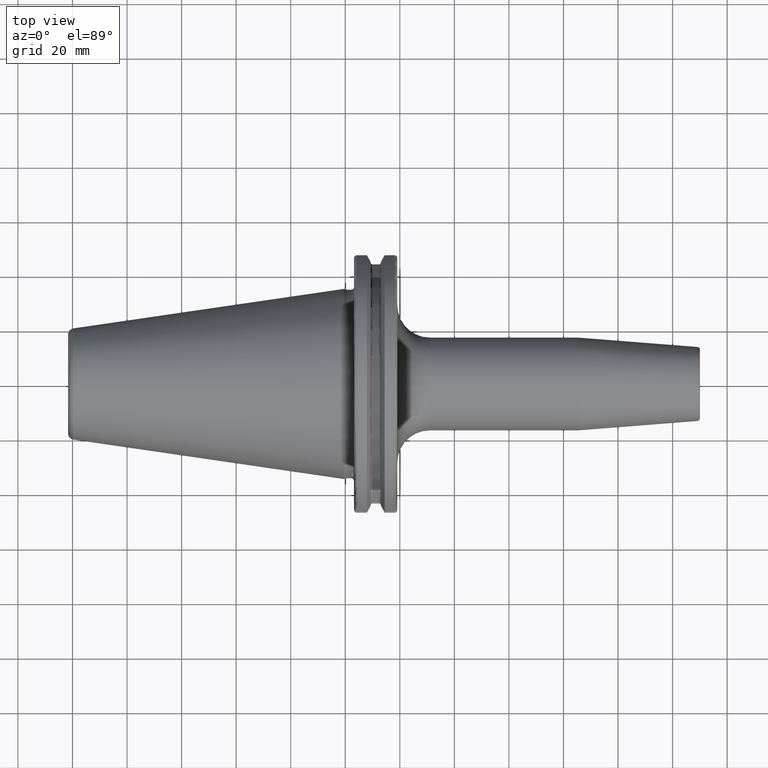
[diagram: clean part render]
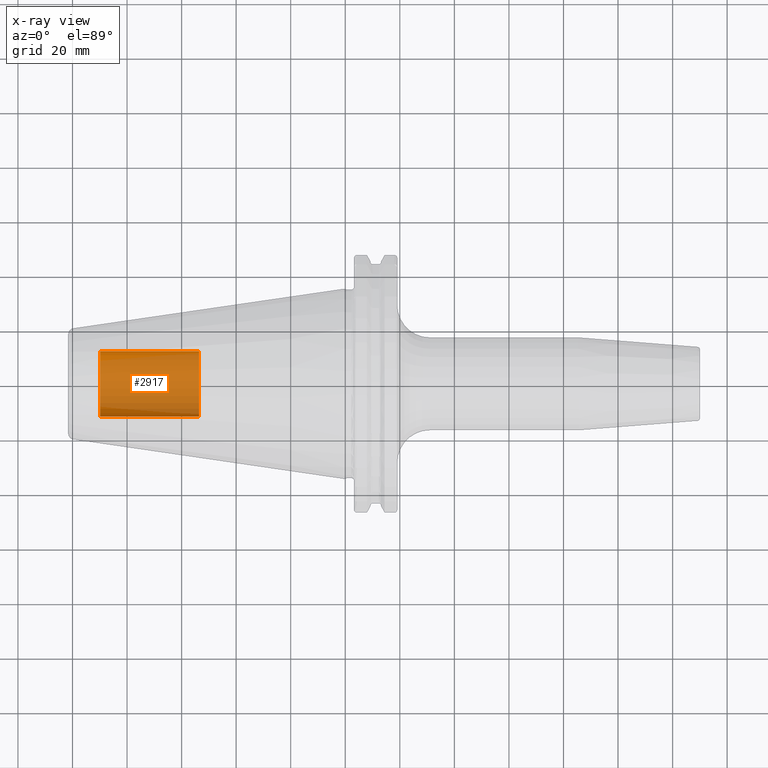
[diagram: x-ray — body ghosted, one internal face saturated and labeled with its STEP entity id]
A machine part, top view, then the same camera in x-ray: the body is ghosted and one INTERNAL B-rep face — a face not visible from any outside direction — is saturated and labeled: STEP entity #2917.
In plain terms, the highlighted cylindrical surface (edge-blend (fillet) strip) has radius 12.0032 mm, axis along (1, 0, 0).
Its self-contained STEP definition (entity closure, byte-faithful):
#2852=CARTESIAN_POINT('',(-8.985E1,0.E0,0.E0));
#2853=DIRECTION('',(-1.E0,0.E0,0.E0));
#2854=DIRECTION('',(0.E0,1.E0,0.E0));
#2855=AXIS2_PLACEMENT_3D('',#2852,#2853,#2854);
#2857=DIRECTION('',(1.E0,0.E0,0.E0));
#2858=VECTOR('',#2857,3.625E1);
#2859=CARTESIAN_POINT('',(-8.985E1,-1.200325E1,0.E0));
#2860=LINE('',#2859,#2858);
#2866=DIRECTION('',(1.E0,0.E0,0.E0));
#2867=VECTOR('',#2866,3.625E1);
#2868=CARTESIAN_POINT('',(-8.985E1,1.200325E1,0.E0));
#2869=LINE('',#2868,#2867);
#2875=CARTESIAN_POINT('',(-5.36E1,0.E0,0.E0));
#2876=DIRECTION('',(1.E0,0.E0,0.E0));
#2877=DIRECTION('',(0.E0,-1.E0,0.E0));
#2878=AXIS2_PLACEMENT_3D('',#2875,#2876,#2877);
#2890=CARTESIAN_POINT('',(-8.985E1,1.200325E1,0.E0));
#2891=CARTESIAN_POINT('',(-8.985E1,-1.200325E1,0.E0));
#2892=VERTEX_POINT('',#2890);
#2893=VERTEX_POINT('',#2891);
#2894=CARTESIAN_POINT('',(-5.36E1,1.200325E1,0.E0));
#2895=CARTESIAN_POINT('',(-5.36E1,-1.200325E1,0.E0));
#2896=VERTEX_POINT('',#2894);
#2897=VERTEX_POINT('',#2895);
#2902=CARTESIAN_POINT('',(-8.985E1,0.E0,0.E0));
#2903=DIRECTION('',(1.E0,0.E0,0.E0));
#2904=DIRECTION('',(0.E0,1.E0,0.E0));
#2905=AXIS2_PLACEMENT_3D('',#2902,#2903,#2904);
#2906=CYLINDRICAL_SURFACE('',#2905,1.200325E1);
#2908=ORIENTED_EDGE('',*,*,#2907,.T.);
#2910=ORIENTED_EDGE('',*,*,#2909,.T.);
#2912=ORIENTED_EDGE('',*,*,#2911,.T.);
#2914=ORIENTED_EDGE('',*,*,#2913,.F.);
#2915=EDGE_LOOP('',(#2908,#2910,#2912,#2914));
#2916=FACE_OUTER_BOUND('',#2915,.F.);
#2917=ADVANCED_FACE('',(#2916),#2906,.T.);
#2856=CIRCLE('',#2855,1.200325E1);
#2879=CIRCLE('',#2878,1.200325E1);
#2907=EDGE_CURVE('',#2892,#2893,#2856,.T.);
#2909=EDGE_CURVE('',#2893,#2897,#2860,.T.);
#2911=EDGE_CURVE('',#2897,#2896,#2879,.T.);
#2913=EDGE_CURVE('',#2892,#2896,#2869,.T.);